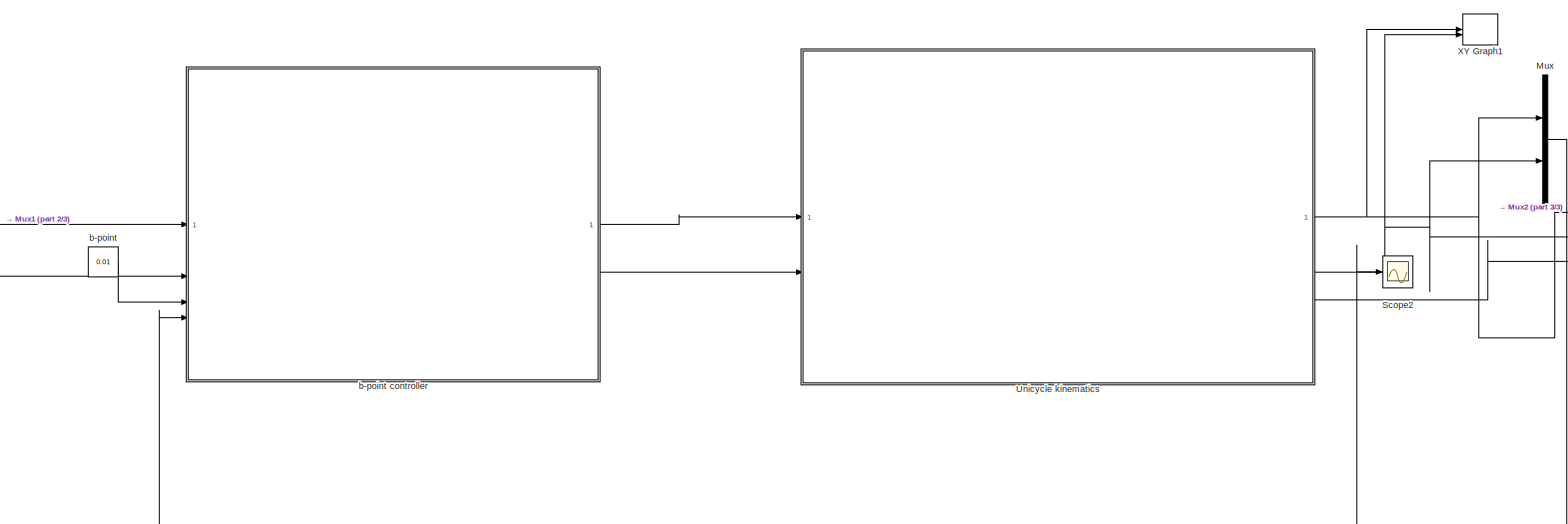
[diagram: root canvas - part 1/3, central region]
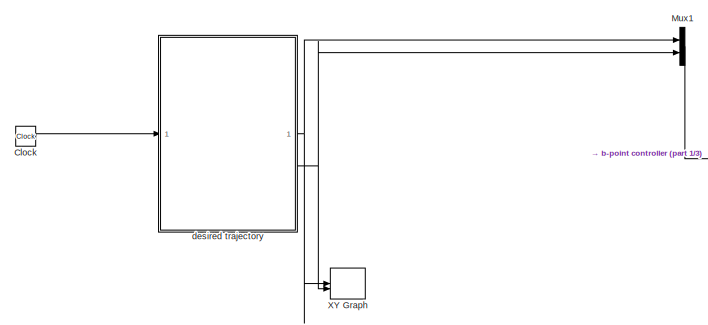
[diagram: root canvas - part 2/3, top left region]
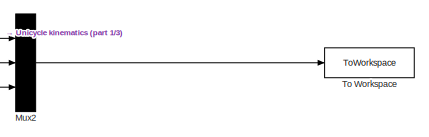
[diagram: root canvas - part 3/3, middle right region]
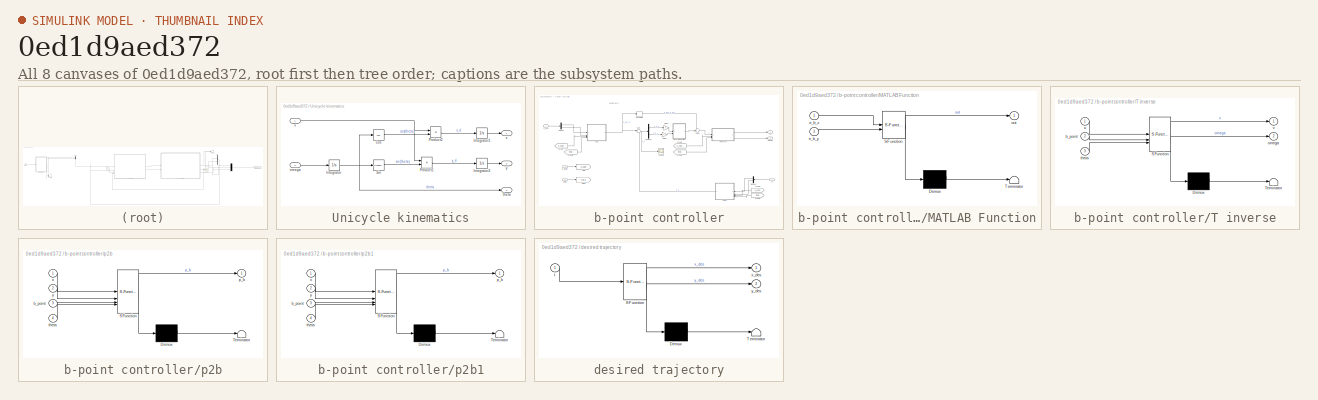
[diagram: thumbnail index - all 8 canvases of the model, root first then tree order]
MODEL slx_0ed1d9aed372
KIND model
CONFIG AbsTol = auto
CONFIG EnableMultiTasking = off
CONFIG FixedStep = 1e-3
CONFIG MaxStep = 0.01
CONFIG MinStep = auto
CONFIG RelTol = 1e-3
CONFIG SampleTimeConstraint = Unconstrained
CONFIG SolverName = ode5
CONFIG StartTime = 0.0
CONFIG StopTime = 14
BLOCK [Clock] Clock
BLOCK [Mux] Mux
  DisplayOption = bar
  Inputs = 2
BLOCK [Mux] Mux1
  DisplayOption = bar
  Inputs = 2
BLOCK [Mux] Mux2
  DisplayOption = bar
  Inputs = 3
BLOCK [Scope] Scope2
  ActiveDisplayYMaximum = 12.060351365868163
  ActiveDisplayYMinimum = 6.9860826762790955
  DataLoggingDecimateData = on
  DataLoggingDecimation = 1
  DataLoggingSaveFormat = Array
  Floating = off
  GraphicalSettings = {"Style":{"BackgroundColor":[0.12941176470588237,0.12941176470588237,0.12941176470588237],"AxesColor":[0.07058823529411765,0.07058823529411765,0.07058823529411765],"LabelsColor":[0.8509803921568627,0.8509803921568627,0.8509803921568627],"PreserveColors":false,"Visible":[true],"LineStyle":["-"],"LineWidth":[1.5],"BarWidth":[0.9],"LineColor":["auto"],"LineFaceAlpha":[1],"LineEdgeAlpha":[1],"Marker":...<+2027ch>
  MultipleDisplayCache = [{"MaxYLimMag":11.61518,"MaxYLimReal":12.060351365868163,"MinYLimMag":9.17437,"MinYLimReal":6.9860826762790955,"PlotAsMagnitudePhase":false,"ShowGrid":true,"ShowLegend":false,"Title":"%<SignalLabel>","YLabel":""}]
  NumInputPorts = 1
  ScopeFrameLocation = window
  WasSavedAsWebScope = on
  WindowPosition = [1.000000,41.000000,2560.000000,1377.000000,]
BLOCK [ToWorkspace] To Workspace
  FixptAsFi = on
  MaxDataPoints = inf
  SampleTime = -1
  SaveFormat = Timeseries
  VariableName = sim_pose
BLOCK [SubSystem] Unicycle kinematics
BLOCK [Trigonometry] Unicycle kinematics/Cos
  Operator = cos
BLOCK [Integrator] Unicycle kinematics/Integrator
BLOCK [Integrator] Unicycle kinematics/Integrator1
BLOCK [Integrator] Unicycle kinematics/Integrator2
BLOCK [Product] Unicycle kinematics/Product1
BLOCK [Product] Unicycle kinematics/Product2
BLOCK [Trigonometry] Unicycle kinematics/Sin
BLOCK [Inport] Unicycle kinematics/omega
  Port = 2
BLOCK [Outport] Unicycle kinematics/theta
  Port = 3
BLOCK [Inport] Unicycle kinematics/v
BLOCK [Outport] Unicycle kinematics/x
BLOCK [Outport] Unicycle kinematics/y
  Port = 2
BLOCK [Record] XY Graph
  CompatibilityTag = XY
  FileSettingsInternal = {"entries":[{"content":{"excelSettings":{"content":{},"type":"Streamout.ExcelSettings"},"parquetSettings":{"content":{},"type":"Streamout.ParquetSettings"}},"type":"Streamout.FileSettingStorage","uuid":""}],"packageUris":["http:\/\/schema.mathworks.com\/mf0\/streamout_blocks\/R2020a"],"version":"1.0"}
  FrameSettings = [0, 0]
  Layout = [1 1]
  NumPorts = 2.0
  SignalsInternal = {"entries":[{"content":{"signals":[{"content":{"blockPath":[],"dimensions":[1],"domain":"","lineColor":"#a2142f","plots":[ 1 ],"port":1,"sid":[""],"signalID":1,"signalName":"desired trajectory:1"},"type":"RecordBlkView.Signal","uuid":""},{"content":{"blockPath":[],"dimensions":[1],"domain":"","lineColor":"#139fff","plots":[ 1 ],"port":2,"sid":[""],"signalID":2,"signalName":"desired trajectory:2"},...<+186ch>
  VisualizationBindings = {"xyplotplugin":{"info":[{"series":[{"bindingParametersList":[{"parameter":"X-Axis","signalID":1,"signalName":"desired trajectory:1"},{"parameter":"Y-Axis","signalID":2,"signalName":"desired trajectory:2"}],"seriesID":0}],"subplotID":1}]}}
BLOCK [Record] XY Graph1
  CompatibilityTag = XY
  FileSettingsInternal = {"entries":[{"content":{"excelSettings":{"content":{},"type":"Streamout.ExcelSettings"},"parquetSettings":{"content":{},"type":"Streamout.ParquetSettings"}},"type":"Streamout.FileSettingStorage","uuid":""}],"packageUris":["http:\/\/schema.mathworks.com\/mf0\/streamout_blocks\/R2020a"],"version":"1.0"}
  FrameSettings = [0, 0]
  Layout = [1 1]
  NumPorts = 2.0
  SignalsInternal = {"entries":[{"content":{"signals":[{"content":{"blockPath":[],"dimensions":[1],"domain":"","lineColor":"#a2142f","plots":[ 1 ],"port":1,"sid":[""],"signalID":1,"signalName":"Unicycle kinematics:1"},"type":"RecordBlkView.Signal","uuid":""},{"content":{"blockPath":[],"dimensions":[1],"domain":"","lineColor":"#139fff","plots":[ 1 ],"port":2,"sid":[""],"signalID":2,"signalName":"Unicycle kinematics:2"...<+188ch>
  VisualizationBindings = {"xyplotplugin":{"info":[{"series":[{"bindingParametersList":[{"parameter":"X-Axis","signalID":1,"signalName":"Unicycle kinematics:1"},{"parameter":"Y-Axis","signalID":2,"signalName":"Unicycle kinematics:2"}],"seriesID":0}],"subplotID":1}]}}
BLOCK [Constant] b-point
  Value = 0.01
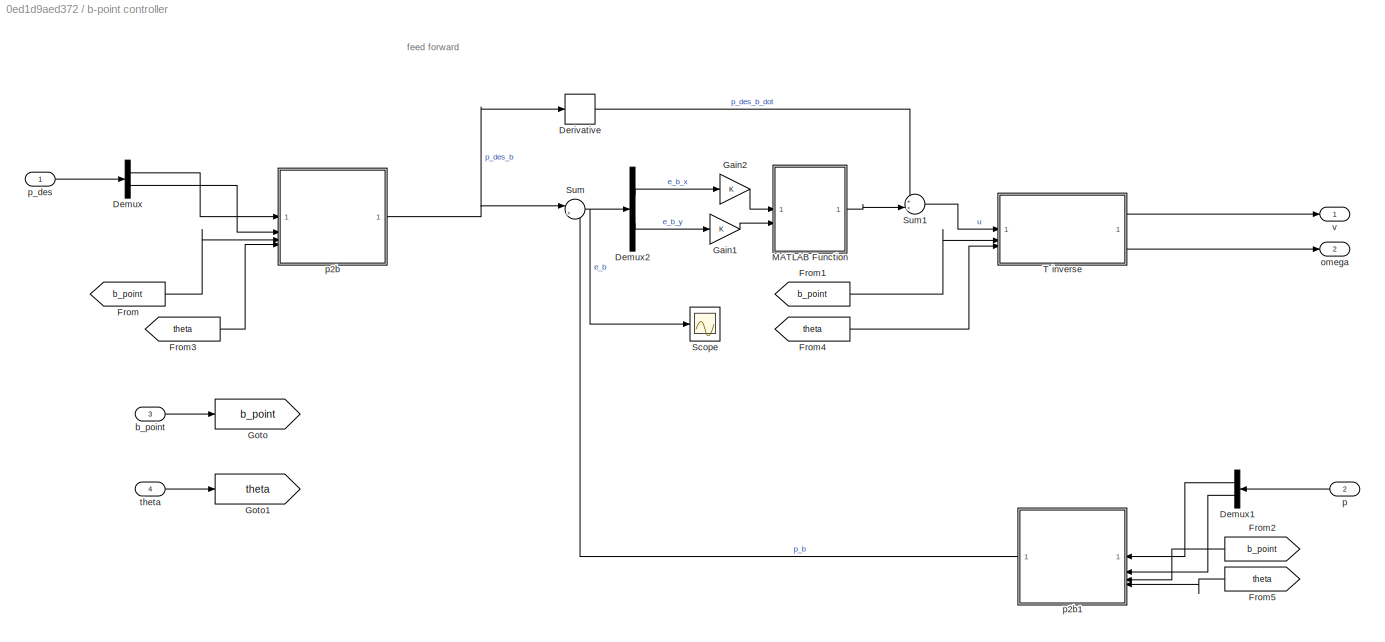
BLOCK [SubSystem] b-point controller
BLOCK [Demux] b-point controller/Demux
  Outputs = 2
BLOCK [Demux] b-point controller/Demux1
  NameLocation = top
  Outputs = 2
BLOCK [Demux] b-point controller/Demux2
  Outputs = 2
BLOCK [Derivative] b-point controller/Derivative
BLOCK [From] b-point controller/From
  GotoTag = b_point
BLOCK [From] b-point controller/From1
  GotoTag = b_point
BLOCK [From] b-point controller/From2
  GotoTag = b_point
  NameLocation = top
BLOCK [From] b-point controller/From3
  GotoTag = theta
BLOCK [From] b-point controller/From4
  GotoTag = theta
BLOCK [From] b-point controller/From5
  GotoTag = theta
  NameLocation = top
BLOCK [Gain] b-point controller/Gain1
BLOCK [Gain] b-point controller/Gain2
BLOCK [Goto] b-point controller/Goto
  GotoTag = b_point
BLOCK [Goto] b-point controller/Goto1
  GotoTag = theta
BLOCK [SubSystem] b-point controller/MATLAB Function
  ErrorFcn = Stateflow.Translate.translate
  PermitHierarchicalResolution = ExplicitOnly
  SFBlockType = MATLAB Function
  TreatAsAtomicUnit = on
BLOCK [Demux] b-point controller/MATLAB Function/ Demux 
  Outputs = 1
BLOCK [S-Function] b-point controller/MATLAB Function/ SFunction 
  EnableBusSupport = off
  FunctionName = sf_sfun
  PortCounts = [2 2]
  SFcnIsStateOwnerBlock = off
  SFunctionDeploymentMode = off
  Tag = Stateflow S-Function 3
BLOCK [Terminator] b-point controller/MATLAB Function/ Terminator 
BLOCK [Inport] b-point controller/MATLAB Function/e_b_x
BLOCK [Inport] b-point controller/MATLAB Function/e_b_y
  Port = 2
BLOCK [Outport] b-point controller/MATLAB Function/out
BLOCK [Scope] b-point controller/Scope
  DataLoggingDecimateData = on
  DataLoggingDecimation = 1
  DataLoggingLimitDataPoints = on
  DataLoggingSaveFormat = Array
  DataLoggingVariableName = ScopeData1
  Floating = off
  GraphicalSettings = {"GraphicalSettings":{"LegacySettings":true,"Style":{"Style":{"ActiveDisplayYMaximum":"1","ActiveDisplayYMinimum":"-1","MinimizeControls":"false","PlotType":"Auto","ShowLegend":"true"}}}}
  NumInputPorts = 1
  WasSavedAsWebScope = on
BLOCK [Sum] b-point controller/Sum
  Inputs = |+-
BLOCK [Sum] b-point controller/Sum1
  Inputs = ++|
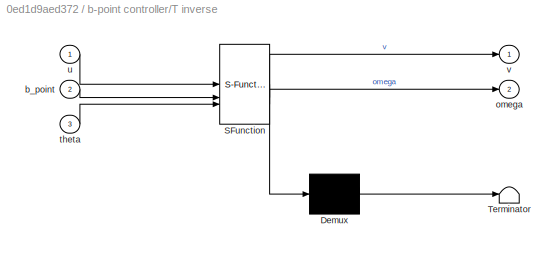
BLOCK [SubSystem] b-point controller/T inverse
  ErrorFcn = Stateflow.Translate.translate
  PermitHierarchicalResolution = ExplicitOnly
  SFBlockType = MATLAB Function
  TreatAsAtomicUnit = on
BLOCK [Demux] b-point controller/T inverse/ Demux 
  Outputs = 1
BLOCK [S-Function] b-point controller/T inverse/ SFunction 
  EnableBusSupport = off
  FunctionName = sf_sfun
  PortCounts = [3 3]
  SFcnIsStateOwnerBlock = off
  SFunctionDeploymentMode = off
  Tag = Stateflow S-Function 6
BLOCK [Terminator] b-point controller/T inverse/ Terminator 
BLOCK [Inport] b-point controller/T inverse/b_point
  Port = 2
BLOCK [Outport] b-point controller/T inverse/omega
  Port = 2
BLOCK [Inport] b-point controller/T inverse/theta
  Port = 3
BLOCK [Inport] b-point controller/T inverse/u
BLOCK [Outport] b-point controller/T inverse/v
BLOCK [Inport] b-point controller/b_point
  Port = 3
BLOCK [Outport] b-point controller/omega
  Port = 2
BLOCK [Inport] b-point controller/p
  NameLocation = top
  Port = 2
BLOCK [SubSystem] b-point controller/p2b
  ErrorFcn = Stateflow.Translate.translate
  PermitHierarchicalResolution = ExplicitOnly
  SFBlockType = MATLAB Function
  TreatAsAtomicUnit = on
BLOCK [Demux] b-point controller/p2b/ Demux 
  Outputs = 1
BLOCK [S-Function] b-point controller/p2b/ SFunction 
  EnableBusSupport = off
  FunctionName = sf_sfun
  PortCounts = [4 2]
  SFcnIsStateOwnerBlock = off
  SFunctionDeploymentMode = off
  Tag = Stateflow S-Function 2
BLOCK [Terminator] b-point controller/p2b/ Terminator 
BLOCK [Inport] b-point controller/p2b/b_point
  Port = 3
BLOCK [Outport] b-point controller/p2b/p_b
BLOCK [Inport] b-point controller/p2b/theta
  Port = 4
BLOCK [Inport] b-point controller/p2b/x
BLOCK [Inport] b-point controller/p2b/y
  Port = 2
BLOCK [SubSystem] b-point controller/p2b1
  ErrorFcn = Stateflow.Translate.translate
  NameLocation = top
  PermitHierarchicalResolution = ExplicitOnly
  SFBlockType = MATLAB Function
  TreatAsAtomicUnit = on
BLOCK [Demux] b-point controller/p2b1/ Demux 
  Outputs = 1
BLOCK [S-Function] b-point controller/p2b1/ SFunction 
  EnableBusSupport = off
  FunctionName = sf_sfun
  PortCounts = [4 2]
  SFcnIsStateOwnerBlock = off
  SFunctionDeploymentMode = off
  Tag = Stateflow S-Function 1
BLOCK [Terminator] b-point controller/p2b1/ Terminator 
BLOCK [Inport] b-point controller/p2b1/b_point
  Port = 3
BLOCK [Outport] b-point controller/p2b1/p_b
BLOCK [Inport] b-point controller/p2b1/theta
  Port = 4
BLOCK [Inport] b-point controller/p2b1/x
BLOCK [Inport] b-point controller/p2b1/y
  Port = 2
BLOCK [Inport] b-point controller/p_des
BLOCK [Inport] b-point controller/theta
  Port = 4
BLOCK [Outport] b-point controller/v
BLOCK [SubSystem] desired trajectory
  ErrorFcn = Stateflow.Translate.translate
  PermitHierarchicalResolution = ExplicitOnly
  SFBlockType = MATLAB Function
  TreatAsAtomicUnit = on
BLOCK [Demux] desired trajectory/ Demux 
  Outputs = 1
BLOCK [S-Function] desired trajectory/ SFunction 
  EnableBusSupport = off
  FunctionName = sf_sfun
  PortCounts = [1 3]
  SFcnIsStateOwnerBlock = off
  SFunctionDeploymentMode = off
  Tag = Stateflow S-Function 4
BLOCK [Terminator] desired trajectory/ Terminator 
BLOCK [Inport] desired trajectory/t
BLOCK [Outport] desired trajectory/x_des
BLOCK [Outport] desired trajectory/y_des
  Port = 2
ANNOTATION b-point controller: feed forward
LINE Clock:1 -> desired trajectory:1
LINE Mux1:1 -> b-point controller:1
LINE Mux2:1 -> To Workspace:1
LINE Mux:1 -> b-point controller:2
LINE Unicycle kinematics/Cos:1 -> Unicycle kinematics/Product2:2
LINE Unicycle kinematics/Integrator1:1 -> Unicycle kinematics/x:1
LINE Unicycle kinematics/Integrator2:1 -> Unicycle kinematics/y:1
NET Unicycle kinematics/Integrator:1 -> Unicycle kinematics/Cos:1, Unicycle kinematics/Sin:1, Unicycle kinematics/theta:1
LINE Unicycle kinematics/Product1:1 -> Unicycle kinematics/Integrator2:1
LINE Unicycle kinematics/Product2:1 -> Unicycle kinematics/Integrator1:1
LINE Unicycle kinematics/Sin:1 -> Unicycle kinematics/Product1:2
LINE Unicycle kinematics/omega:1 -> Unicycle kinematics/Integrator:1
NET Unicycle kinematics/v:1 -> Unicycle kinematics/Product1:1, Unicycle kinematics/Product2:1
NET Unicycle kinematics:1 -> Mux2:1, Mux:1, XY Graph1:1
NET Unicycle kinematics:2 -> Mux2:2, Mux:2, XY Graph1:2
NET Unicycle kinematics:3 -> Mux2:3, Scope2:1, b-point controller:4
LINE b-point controller/Demux1:1 -> b-point controller/p2b1:1
LINE b-point controller/Demux1:2 -> b-point controller/p2b1:2
LINE b-point controller/Demux2:1 -> b-point controller/Gain2:1
LINE b-point controller/Demux2:2 -> b-point controller/Gain1:1
LINE b-point controller/Demux:1 -> b-point controller/p2b:1
LINE b-point controller/Demux:2 -> b-point controller/p2b:2
LINE b-point controller/Derivative:1 -> b-point controller/Sum1:1
LINE b-point controller/From1:1 -> b-point controller/T inverse:2
LINE b-point controller/From2:1 -> b-point controller/p2b1:3
LINE b-point controller/From3:1 -> b-point controller/p2b:4
LINE b-point controller/From4:1 -> b-point controller/T inverse:3
LINE b-point controller/From5:1 -> b-point controller/p2b1:4
LINE b-point controller/From:1 -> b-point controller/p2b:3
LINE b-point controller/Gain1:1 -> b-point controller/MATLAB Function:2
LINE b-point controller/Gain2:1 -> b-point controller/MATLAB Function:1
LINE b-point controller/MATLAB Function:1 -> b-point controller/Sum1:2
LINE b-point controller/Sum1:1 -> b-point controller/T inverse:1
NET b-point controller/Sum:1 -> b-point controller/Demux2:1, b-point controller/Scope:1
LINE b-point controller/T inverse:1 -> b-point controller/v:1
LINE b-point controller/T inverse:2 -> b-point controller/omega:1
LINE b-point controller/b_point:1 -> b-point controller/Goto:1
LINE b-point controller/p2b1:1 -> b-point controller/Sum:2
NET b-point controller/p2b:1 -> b-point controller/Derivative:1, b-point controller/Sum:1
LINE b-point controller/p:1 -> b-point controller/Demux1:1
LINE b-point controller/p_des:1 -> b-point controller/Demux:1
LINE b-point controller/theta:1 -> b-point controller/Goto1:1
LINE b-point controller:1 -> Unicycle kinematics:1
LINE b-point controller:2 -> Unicycle kinematics:2
LINE b-point:1 -> b-point controller:3
NET desired trajectory:1 -> Mux1:1, XY Graph:1
NET desired trajectory:2 -> Mux1:2, XY Graph:2
note: NET lines group one-source signal fan-out (src -> all destinations, sorted); 1:1 wires keep LINE
CHART b-point controller/p2b1 states=1 transitions=1
  STATE_LABEL 'eML_blk_kernel()'
  STATE_LABEL 'SCRIPT:\nfunction p_b = fcn(x, y, b_point, theta)\n\nx_b = x + b_point * cos(theta);\ny_b = y + b_point * sin(theta);\n\np_b = [x_b; y_b];\n'
CHART b-point controller/p2b states=1 transitions=1
  STATE_LABEL 'eML_blk_kernel()'
  STATE_LABEL 'SCRIPT:\nfunction p_b = fcn(x, y, b_point, theta)\n\nx_b = x + b_point * cos(theta);\ny_b = y + b_point * sin(theta);\n\np_b = [x_b; y_b];\n'
CHART b-point controller/MATLAB Function states=1 transitions=1
  STATE_LABEL 'eML_blk_kernel()'
  STATE_LABEL 'SCRIPT:\nfunction out = fcn(e_b_x, e_b_y)\n\nout = [e_b_x; e_b_y];\n'
CHART desired trajectory states=1 transitions=1
  STATE_LABEL 'eML_blk_kernel()'
  STATE_LABEL 'SCRIPT:\nfunction [x_des, y_des] = fcn(t)\n\n% % configurable:\n% radius = 5;\n% omega_des = 0.2;\n% \n% % desired trajectory\n% x_des = -radius*cos(omega_des*t);\n% y_des = -radius*sin(omega_des*t);\n\n\n% % configurable:\n% radius = 10;\n% omega_des = 0.5;\n% \n% % desired trajectory\n% x_des = radius*cos(omega_des*t);\n% y_des = radius*sin(omega_des*t);\n% \n\n\nif t <= 10\n    x_des = 10+t;\n    y_des = 10;\nelseif  t...<+183ch>'
CHART b-point controller/T inverse states=1 transitions=1
  STATE_LABEL 'eML_blk_kernel()'
  STATE_LABEL 'SCRIPT:\nfunction [v, omega] = fcn(u, b_point, theta)\n\n% define matrix T inverse\nT_inv = [cos(theta), sin(theta);\n    -sin(theta)/b_point, cos(theta)/b_point];\n\n% do calculation\nres = T_inv * u;\n\n% assign output\nv = res(1, 1);\nomega = res(2, 1);\n'
CHART  states=0 transitions=0
CHART  states=0 transitions=0
CHART  states=0 transitions=0
CHART  states=0 transitions=0
CHART  states=0 transitions=0
